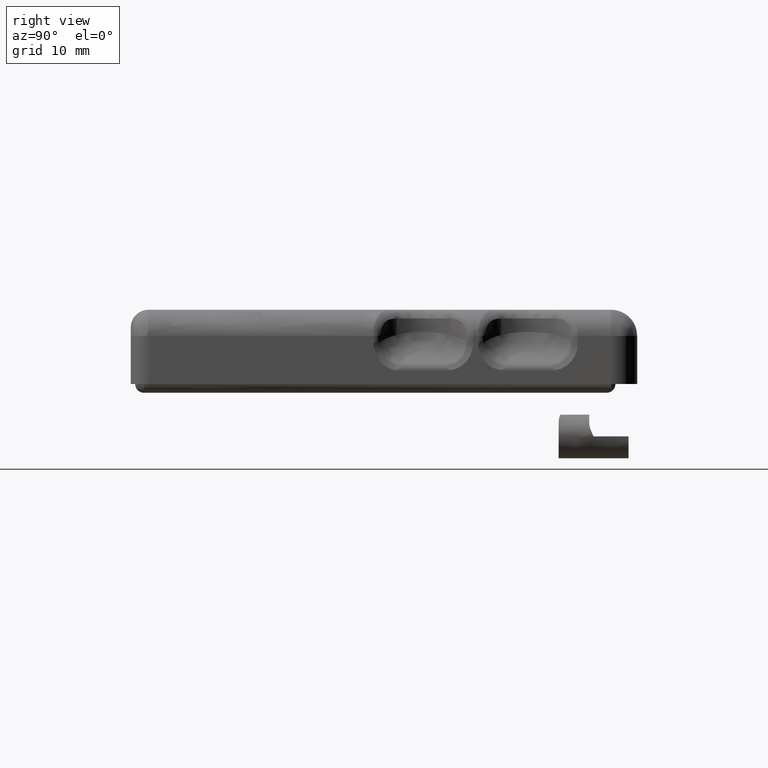
[diagram: clean part render]
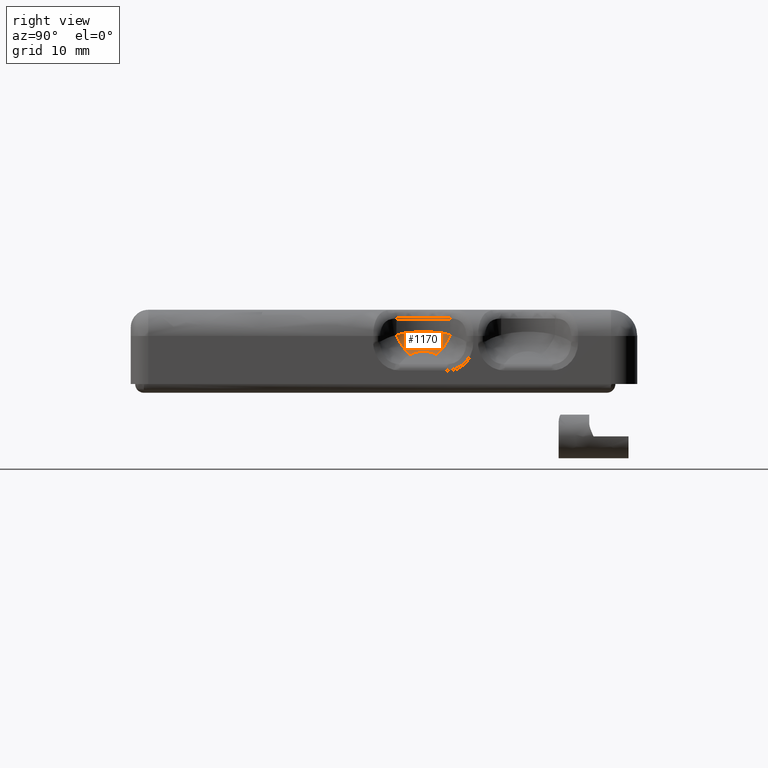
[diagram: same view with one face highlighted and labeled with its STEP entity id]
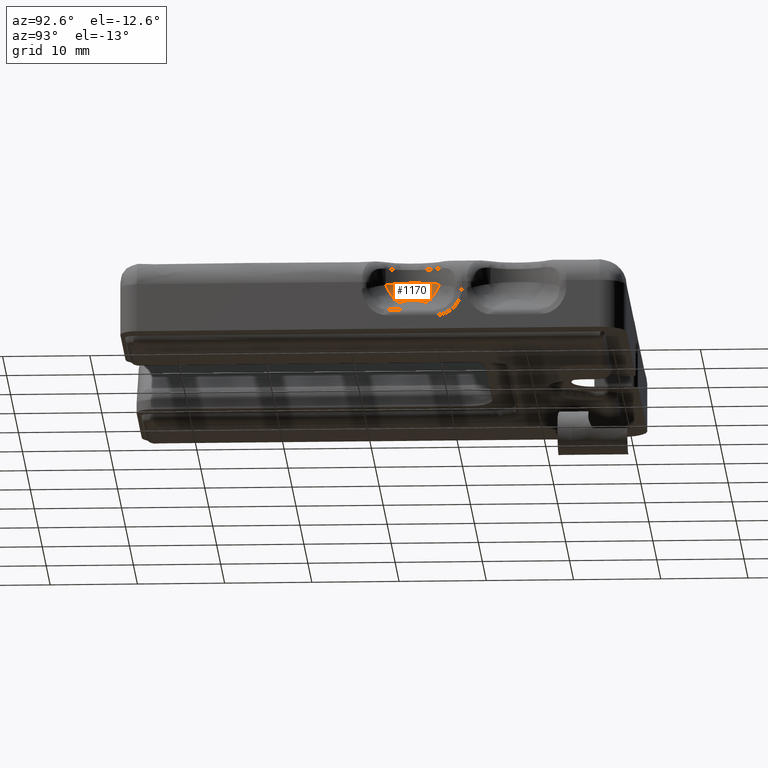
[diagram: same view with one face highlighted and labeled with its STEP entity id]
A machine part, right view. The second image highlights one B-rep face of the part: STEP entity #1170.
A second angle (auxiliary view) of the same face is appended — the face is thin or edge-on in the first view.
In plain terms, the highlighted face is a freeform B-spline surface patch.
Its self-contained STEP definition (entity closure, byte-faithful):
#288=CARTESIAN_POINT('',(26.857070002570101,-21.410638440727400,6.622309232512063));
#289=VERTEX_POINT('',#288);
#415=CARTESIAN_POINT('',(27.443948440103451,-22.956268444531251,4.372308485904065));
#416=VERTEX_POINT('',#415);
#465=CARTESIAN_POINT('',(27.443948440103451,-22.956268444531251,4.372308485904065));
#466=CARTESIAN_POINT('',(27.298538908581300,-22.800871158647809,4.500549071566359));
#467=CARTESIAN_POINT('',(27.178062286551778,-22.650652301208751,4.647293066816117));
#468=CARTESIAN_POINT('',(26.981922459155541,-22.359522086989799,4.974038347395298));
#469=CARTESIAN_POINT('',(26.906283546595141,-22.218615775692431,5.154057661095825));
#470=CARTESIAN_POINT('',(26.848285488981119,-22.065723807593660,5.376687880044697));
#471=CARTESIAN_POINT('',(26.839192168353328,-22.040360826498539,5.414218172420099));
#472=CARTESIAN_POINT('',(26.830977507016989,-22.015180338115279,5.452400542434616));
#473=CARTESIAN_POINT('',(26.825698788136901,-21.998434411636129,5.478002190812747));
#474=CARTESIAN_POINT('',(26.823252227609949,-21.990389315672239,5.490403181266226));
#475=CARTESIAN_POINT('',(26.811342035748090,-21.949791933581711,5.553475467128575));
#476=CARTESIAN_POINT('',(26.803426953732391,-21.917947941401749,5.604566622174877));
#477=CARTESIAN_POINT('',(26.790819796906810,-21.855526551805429,5.708014353870192));
#478=CARTESIAN_POINT('',(26.786133230654620,-21.824929916564241,5.760413464270068));
#479=CARTESIAN_POINT('',(26.780038079653011,-21.765525887810458,5.865553593741477));
#480=CARTESIAN_POINT('',(26.778612583972830,-21.736649708351809,5.918405186003405));
#481=CARTESIAN_POINT('',(26.779446748748519,-21.596322250385811,6.184044966683901));
#482=CARTESIAN_POINT('',(26.805244120108689,-21.496854515608000,6.400918351082564));
#483=CARTESIAN_POINT('',(26.857070002570101,-21.410638440727400,6.622309232512063));
#484=B_SPLINE_CURVE_WITH_KNOTS('',3,(#465,#466,#467,#468,#469,#470,#471,#472,#473,#474,#475,#476,#477,#478,#479,#480,#481,#482,#483),.UNSPECIFIED.,.F.,.U.,(4,2,2,1,2,2,2,2,2,4),(0.0,0.250000000000001,0.500000000000001,0.531250000000001,0.546875000000001,0.562500000000001,0.625000000000001,0.687500000000001,0.750000000000001,1.0),.UNSPECIFIED.);
#485=EDGE_CURVE('',#416,#289,#484,.T.);
#783=CARTESIAN_POINT('',(26.857070002530850,-27.589361559321851,6.622306583035480));
#784=VERTEX_POINT('',#783);
#790=CARTESIAN_POINT('',(26.857070002530850,-27.589361559321851,6.622306583035480));
#791=CARTESIAN_POINT('',(25.000000000530299,-24.500000000012783,7.440711538485084));
#792=CARTESIAN_POINT('',(26.857070002570101,-21.410638440727400,6.622309232512063));
#800=(BOUNDED_CURVE()B_SPLINE_CURVE(2,(#790,#791,#792),.UNSPECIFIED.,.F.,.U.)CURVE()GEOMETRIC_REPRESENTATION_ITEM()QUASI_UNIFORM_CURVE()RATIONAL_B_SPLINE_CURVE((1.0,0.857070002009899,1.0))REPRESENTATION_ITEM(''));
#801=EDGE_CURVE('',#784,#289,#800,.T.);
#811=CARTESIAN_POINT('',(27.443950617271401,-26.043735177513049,4.372306565806144));
#812=VERTEX_POINT('',#811);
#834=CARTESIAN_POINT('',(27.443948440103469,-22.956268444531251,4.372308485904132));
#835=CARTESIAN_POINT('',(26.516007172338906,-24.500002465373008,5.190675761158480));
#836=CARTESIAN_POINT('',(27.443950617271440,-26.043735177513131,4.372306565806190));
#844=(BOUNDED_CURVE()B_SPLINE_CURVE(2,(#834,#835,#836),.UNSPECIFIED.,.F.,.U.)CURVE()GEOMETRIC_REPRESENTATION_ITEM()QUASI_UNIFORM_CURVE()RATIONAL_B_SPLINE_CURVE((1.0,0.857075674286611,1.0))REPRESENTATION_ITEM(''));
#845=EDGE_CURVE('',#416,#812,#844,.T.);
#1067=CARTESIAN_POINT('',(26.897014201429066,-27.654988751346377,6.632813507751932));
#1068=CARTESIAN_POINT('',(26.892448494520789,-27.647536776802514,6.634808222556620));
#1069=CARTESIAN_POINT('',(26.887882761821619,-27.640084760163774,6.636802948629084));
#1070=CARTESIAN_POINT('',(26.596332486915667,-27.164227402147432,6.764178547051529));
#1071=CARTESIAN_POINT('',(26.374172433494021,-26.656217883181878,6.861230001461208));
#1072=CARTESIAN_POINT('',(26.075971848457449,-25.598729116968872,6.991477676550845));
#1073=CARTESIAN_POINT('',(26.000000028780970,-25.049395576928337,7.024658080130204));
#1074=CARTESIAN_POINT('',(25.999999972290574,-23.950605039757999,7.024658104803823));
#1075=CARTESIAN_POINT('',(26.075971735485904,-23.401271491895113,6.991477725896773));
#1076=CARTESIAN_POINT('',(26.374172211807227,-22.343782694976760,6.861230098309244));
#1077=CARTESIAN_POINT('',(26.596332213015138,-21.835773153139094,6.764178666725052));
#1078=CARTESIAN_POINT('',(26.887881751766411,-21.359916886825520,6.636803389944927));
#1079=CARTESIAN_POINT('',(26.892446796452070,-21.352465991416903,6.634808964459507));
#1080=CARTESIAN_POINT('',(26.897011815354620,-21.345015138090439,6.632814550238467));
#1081=CARTESIAN_POINT('',(26.893936904058958,-27.649993189019998,6.620123840556814));
#1082=CARTESIAN_POINT('',(26.889385838979042,-27.642548806248548,6.622120760215504));
#1083=CARTESIAN_POINT('',(26.884834761030202,-27.635104402426805,6.624117685520831));
#1084=CARTESIAN_POINT('',(26.594246866787884,-27.159776654853843,6.751622053927082));
#1085=CARTESIAN_POINT('',(26.372850600457280,-26.652506472266356,6.848762389657245));
#1086=CARTESIAN_POINT('',(26.075698218562462,-25.596751007820497,6.979130507432755));
#1087=CARTESIAN_POINT('',(26.000000028679363,-25.048403848785664,7.012339950215454));
#1088=CARTESIAN_POINT('',(25.999999972392189,-23.951596766789443,7.012339974911382));
#1089=CARTESIAN_POINT('',(26.075698105995276,-23.403249599979993,6.979130556822825));
#1090=CARTESIAN_POINT('',(26.372850379538630,-22.347494105012828,6.848762486595381));
#1091=CARTESIAN_POINT('',(26.594246593814599,-21.840223899687160,6.751622173713821));
#1092=CARTESIAN_POINT('',(26.884833754236016,-21.364897242838591,6.624118127307015));
#1093=CARTESIAN_POINT('',(26.889384146376180,-21.357453959108515,6.622121502921522));
#1094=CARTESIAN_POINT('',(26.893934525651300,-21.350010696422391,6.620124884180966));
#1095=CARTESIAN_POINT('',(26.541778161112283,-27.078312672781170,5.167947885366566));
#1096=CARTESIAN_POINT('',(26.538959733448849,-27.071830006204877,5.170433504928528));
#1097=CARTESIAN_POINT('',(26.536142207435578,-27.065349413514507,5.172918329309776));
#1098=CARTESIAN_POINT('',(26.358105635131022,-26.655847423590600,5.329931827511120));
#1099=CARTESIAN_POINT('',(26.224330392002329,-26.235495013548647,5.447910502477648));
#1100=CARTESIAN_POINT('',(26.045264077559626,-25.376738305111019,5.605832147884383));
#1101=CARTESIAN_POINT('',(26.000000017406862,-24.938380295169086,5.645751296717950));
#1102=CARTESIAN_POINT('',(25.999999983664697,-24.061620196915722,5.645751326480085));
#1103=CARTESIAN_POINT('',(26.045264010081862,-23.623262183565657,5.605832207403739));
#1104=CARTESIAN_POINT('',(26.224330258524432,-22.764505461740125,5.447910620212068));
#1105=CARTESIAN_POINT('',(26.358105469398620,-22.344153041725349,5.329931973694185));
#1106=CARTESIAN_POINT('',(26.536141586259738,-21.934652014018948,5.172918877162461));
#1107=CARTESIAN_POINT('',(26.538958687460870,-21.928172397088666,5.170434427430402));
#1108=CARTESIAN_POINT('',(26.541776690040294,-21.921690706897376,5.167949182757406));
#1109=CARTESIAN_POINT('',(27.468964044190660,-26.062667852281812,4.350246796784111));
#1110=CARTESIAN_POINT('',(27.466703237160885,-26.058974441105597,4.352240641171835));
#1111=CARTESIAN_POINT('',(27.464442423742284,-26.055281019492138,4.354234491194001));
#1112=CARTESIAN_POINT('',(27.320088716655899,-25.819454791044535,4.481542494455916));
#1113=CARTESIAN_POINT('',(27.210124752963285,-25.567803847997613,4.578521594827469));
#1114=CARTESIAN_POINT('',(27.062533254963128,-25.044064313775124,4.708685061275972));
#1115=CARTESIAN_POINT('',(27.024935748620344,-24.772041241914849,4.741842945177259));
#1116=CARTESIAN_POINT('',(27.024935720664640,-24.227959063483492,4.741842969834727));
#1117=CARTESIAN_POINT('',(27.062533199054222,-23.955935987770733,4.708685110588728));
#1118=CARTESIAN_POINT('',(27.210124643231346,-23.432196438422942,4.578521691613215));
#1119=CARTESIAN_POINT('',(27.320088581061832,-23.180545484105302,4.481542614052596));
#1120=CARTESIAN_POINT('',(27.464441923604301,-22.944719796815452,4.354234932290614));
#1121=CARTESIAN_POINT('',(27.466702396337496,-22.941026930917694,4.352241382724810));
#1122=CARTESIAN_POINT('',(27.468962862683753,-22.937334075454061,4.350247838791747));
#1123=CARTESIAN_POINT('',(27.477061167743464,-26.053798215947403,4.343105805032264));
#1124=CARTESIAN_POINT('',(27.474806549672056,-26.050127723085144,4.345094191271737));
#1125=CARTESIAN_POINT('',(27.472551918872639,-26.046457209501799,4.347082588736268));
#1126=CARTESIAN_POINT('',(27.328579812326080,-25.812072239316596,4.474054051955349));
#1127=CARTESIAN_POINT('',(27.218892949175689,-25.561865036232522,4.570788772619266));
#1128=CARTESIAN_POINT('',(27.071673781438800,-25.041075119279594,4.700623874640352));
#1129=CARTESIAN_POINT('',(27.034168612243448,-24.770542820358134,4.733700324832000));
#1130=CARTESIAN_POINT('',(27.034168584357367,-24.229457483361319,4.733700349428044));
#1131=CARTESIAN_POINT('',(27.071673725668589,-23.958925180596193,4.700623923830757));
#1132=CARTESIAN_POINT('',(27.218892839721764,-23.438135248553387,4.570788869159767));
#1133=CARTESIAN_POINT('',(27.328579677079109,-23.187928034225230,4.474054171245842));
#1134=CARTESIAN_POINT('',(27.472551420084084,-22.953543601783966,4.347083028642738));
#1135=CARTESIAN_POINT('',(27.474805711131339,-22.949873640466311,4.345094930811499));
#1136=CARTESIAN_POINT('',(27.477059989454379,-22.946203699863467,4.343106844201936));
#1144=(BOUNDED_SURFACE()B_SPLINE_SURFACE(3,2,((#1067,#1081,#1095,#1109,#1123),(#1068,#1082,#1096,#1110,#1124),(#1069,#1083,#1097,#1111,#1125),(#1070,#1084,#1098,#1112,#1126),(#1071,#1085,#1099,#1113,#1127),(#1072,#1086,#1100,#1114,#1128),(#1073,#1087,#1101,#1115,#1129),(#1074,#1088,#1102,#1116,#1130),(#1075,#1089,#1103,#1117,#1131),(#1076,#1090,#1104,#1118,#1132),(#1077,#1091,#1105,#1119,#1133),(#1078,#1092,#1106,#1120,#1134),(#1079,#1093,#1107,#1121,#1135),(#1080,#1094,#1108,#1122,#1136)),.UNSPECIFIED.,.F.,.F.,.U.)B_SPLINE_SURFACE_WITH_KNOTS((4,2,2,2,2,2,4),(3,1,1,3),(0.0,0.026892762554964,1.716954726095513,3.407016689636062,5.097078653176617,6.787140616717164,6.814029331257316),(0.0,0.029785254466857,3.006438680678040,3.036205400288663),.UNSPECIFIED.)GEOMETRIC_REPRESENTATION_ITEM()RATIONAL_B_SPLINE_SURFACE(((1.002319986341837,1.001159993170919,0.884073589150013,1.001159271326938,1.002318542653875),(1.002317155395755,1.001158577697878,0.884215047490804,1.001157856734722,1.002315713469443),(1.002314324449674,1.001157162224837,0.884356505831594,1.001156442142505,1.002312884285011),(1.002133584139171,1.001066792069585,0.893387841540192,1.001066128223062,1.002132256446123),(1.001998493577648,1.000999246788824,0.900138124356361,1.000998624974577,1.001997249949154),(1.001817859605754,1.000908929802877,0.909164146476262,1.000908364191351,1.001816728382702),(1.001772357398520,1.000886178699260,0.911437826917933,1.000885627245358,1.001771254490716),(1.001772357364556,1.000886178682278,0.911437828615060,1.000885627228387,1.001771254456774),(1.001817859537829,1.000908929768914,0.909164149870355,1.000908364157410,1.001816728314820),(1.001998493442826,1.000999246721413,0.900138131093218,1.000998624907208,1.001997249814416),(1.002133583971418,1.001066791985709,0.893387849922576,1.001066128139237,1.002132256278474),(1.002314323823402,1.001157161911701,0.884356537125484,1.001156441829565,1.002312883659129),(1.002317154342850,1.001158577171425,0.884215100102962,1.001157856208597,1.002315712417193),(1.002319984862299,1.001159992431149,0.884073663080441,1.001159270587629,1.002318541175258)))REPRESENTATION_ITEM('')SURFACE());
#1145=ORIENTED_EDGE('',*,*,#485,.T.);
#1146=ORIENTED_EDGE('',*,*,#801,.F.);
#1147=CARTESIAN_POINT('',(27.443950617271401,-26.043735177513049,4.372306565806144));
#1148=CARTESIAN_POINT('',(27.297910228267600,-26.199806067336780,4.501103296659013));
#1149=CARTESIAN_POINT('',(27.177385370140740,-26.350251685421519,4.648221171000376));
#1150=CARTESIAN_POINT('',(26.981523970487402,-26.641180496684800,4.974903888410972));
#1151=CARTESIAN_POINT('',(26.906232108100070,-26.781653839694041,5.154500812839706));
#1152=CARTESIAN_POINT('',(26.842066306460261,-26.950642817837011,5.400501534031807));
#1153=CARTESIAN_POINT('',(26.827922602144930,-26.992471676507101,5.463364369830584));
#1154=CARTESIAN_POINT('',(26.816255451624482,-27.033754542693639,5.528005467569201));
#1155=CARTESIAN_POINT('',(26.811789652000339,-27.050223362423619,5.554006275983391));
#1156=CARTESIAN_POINT('',(26.809655712162630,-27.058447312352339,5.567099157555509));
#1157=CARTESIAN_POINT('',(26.803704319833649,-27.082433061719239,5.605594379043025));
#1158=CARTESIAN_POINT('',(26.800154664445831,-27.098217369360061,5.631342825845596));
#1159=CARTESIAN_POINT('',(26.784462049285910,-27.176124737285999,5.760502970680682));
#1160=CARTESIAN_POINT('',(26.778462767925799,-27.235216788678439,5.865163661249564));
#1161=CARTESIAN_POINT('',(26.779410065138659,-27.403146280712249,6.182997226446517));
#1162=CARTESIAN_POINT('',(26.805021578570159,-27.502775298732981,6.399964630123992));
#1163=CARTESIAN_POINT('',(26.857070002530850,-27.589361559321851,6.622306583035480));
#1164=B_SPLINE_CURVE_WITH_KNOTS('',3,(#1147,#1148,#1149,#1150,#1151,#1152,#1153,#1154,#1155,#1156,#1157,#1158,#1159,#1160,#1161,#1162,#1163),.UNSPECIFIED.,.F.,.U.,(4,2,2,1,2,2,2,2,4),(0.0,0.250000000000001,0.500000000000003,0.562500000000002,0.578125000000002,0.593750000000002,0.625000000000002,0.750000000000002,1.0),.UNSPECIFIED.);
#1165=EDGE_CURVE('',#812,#784,#1164,.T.);
#1166=ORIENTED_EDGE('',*,*,#1165,.F.);
#1167=ORIENTED_EDGE('',*,*,#845,.F.);
#1168=EDGE_LOOP('',(#1145,#1146,#1166,#1167));
#1169=FACE_OUTER_BOUND('',#1168,.T.);
#1170=ADVANCED_FACE('',(#1169),#1144,.F.);